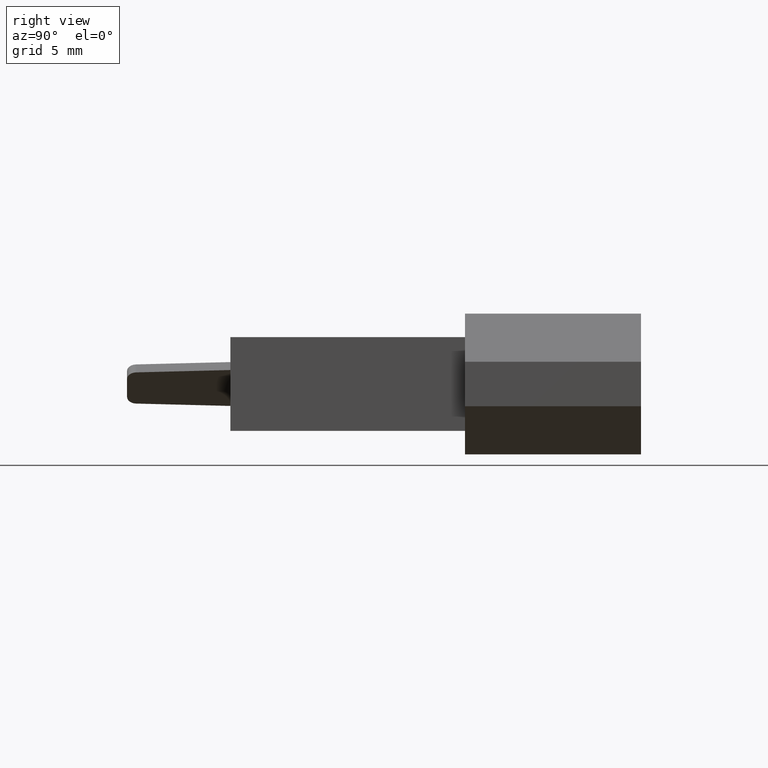
[diagram: clean part render]
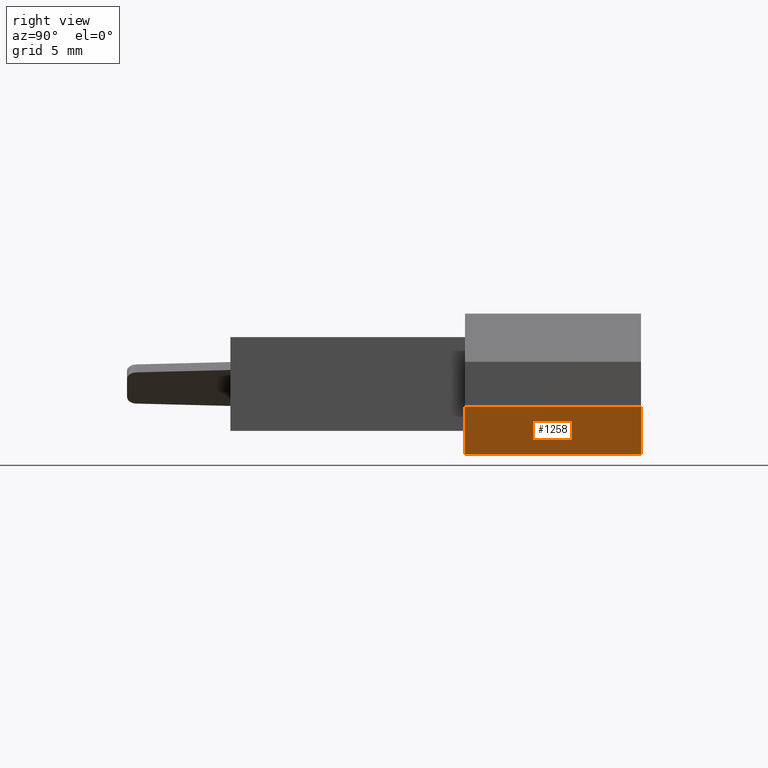
[diagram: same view with one face highlighted and labeled with its STEP entity id]
A machine part, right view. The second image highlights one B-rep face of the part: STEP entity #1258.
In plain terms, the highlighted planar face has unit normal (-0.7071, 0, 0.7071).
Its self-contained STEP definition (entity closure, byte-faithful):
#236 = VECTOR ( 'NONE', #1718, 1000.000000000000000 ) ;
#313 = CARTESIAN_POINT ( 'NONE',  ( 20.86609999999999600, 9.525000000000000400, -3.809999999999999600 ) ) ;
#826 = DIRECTION ( 'NONE',  ( -0.7071067811865490200, -0.0000000000000000000, -0.7071067811865460200 ) ) ;
#933 = CARTESIAN_POINT ( 'NONE',  ( 20.86609999999999600, 9.525000000000000400, -3.809999999999999600 ) ) ;
#988 = VERTEX_POINT ( 'NONE', #8398 ) ;
#1140 = DIRECTION ( 'NONE',  ( -0.7071067811865490200, -0.0000000000000000000, -0.7071067811865460200 ) ) ;
#1258 = ADVANCED_FACE ( 'NONE', ( #7862 ), #6714, .F. ) ;
#1589 = EDGE_CURVE ( 'NONE', #6840, #5432, #3539, .T. ) ;
#1630 = VECTOR ( 'NONE', #826, 1000.000000000000100 ) ;
#1675 = VECTOR ( 'NONE', #7399, 1000.000000000000100 ) ;
#1718 = DIRECTION ( 'NONE',  ( -0.0000000000000000000, -1.000000000000000000, -0.0000000000000000000 ) ) ;
#1891 = CARTESIAN_POINT ( 'NONE',  ( 20.86609999999999600, 0.0000000000000000000, -3.809999999999999600 ) ) ;
#2244 = EDGE_CURVE ( 'NONE', #5432, #988, #8404, .T. ) ;
#2656 = VECTOR ( 'NONE', #8215, 1000.000000000000000 ) ;
#3235 = CARTESIAN_POINT ( 'NONE',  ( 23.46960000000000000, 9.525000000000000400, -1.206500000000005700 ) ) ;
#3366 = ORIENTED_EDGE ( 'NONE', *, *, #2244, .T. ) ;
#3492 = EDGE_CURVE ( 'NONE', #6855, #988, #5938, .T. ) ;
#3539 = LINE ( 'NONE', #5933, #1630 ) ;
#3816 = DIRECTION ( 'NONE',  ( -0.7071067811865460200, 0.0000000000000000000, 0.7071067811865490200 ) ) ;
#4352 = EDGE_CURVE ( 'NONE', #7359, #6855, #5487, .T. ) ;
#4959 = ORIENTED_EDGE ( 'NONE', *, *, #1589, .T. ) ;
#5347 = DIRECTION ( 'NONE',  ( 0.7071067811865490200, 0.0000000000000000000, 0.7071067811865460200 ) ) ;
#5360 = CARTESIAN_POINT ( 'NONE',  ( 22.13609999999999900, 0.0000000000000000000, -2.540000000000000000 ) ) ;
#5432 = VERTEX_POINT ( 'NONE', #5360 ) ;
#5487 = LINE ( 'NONE', #8784, #1675 ) ;
#5933 = CARTESIAN_POINT ( 'NONE',  ( 20.86609999999999600, 0.0000000000000000000, -3.809999999999999600 ) ) ;
#5938 = LINE ( 'NONE', #313, #236 ) ;
#6063 = VECTOR ( 'NONE', #1140, 1000.000000000000100 ) ;
#6137 = CARTESIAN_POINT ( 'NONE',  ( 20.86609999999999600, 9.525000000000000400, -3.809999999999999600 ) ) ;
#6714 = PLANE ( 'NONE',  #8057 ) ;
#6840 = VERTEX_POINT ( 'NONE', #8981 ) ;
#6855 = VERTEX_POINT ( 'NONE', #6137 ) ;
#6909 = EDGE_CURVE ( 'NONE', #7359, #6840, #8356, .T. ) ;
#7002 = ORIENTED_EDGE ( 'NONE', *, *, #3492, .F. ) ;
#7359 = VERTEX_POINT ( 'NONE', #8493 ) ;
#7399 = DIRECTION ( 'NONE',  ( -0.7071067811865490200, -0.0000000000000000000, -0.7071067811865460200 ) ) ;
#7433 = ORIENTED_EDGE ( 'NONE', *, *, #4352, .F. ) ;
#7862 = FACE_OUTER_BOUND ( 'NONE', #8288, .T. ) ;
#8057 = AXIS2_PLACEMENT_3D ( 'NONE', #933, #3816, #5347 ) ;
#8148 = ORIENTED_EDGE ( 'NONE', *, *, #6909, .T. ) ;
#8215 = DIRECTION ( 'NONE',  ( -0.0000000000000000000, -1.000000000000000000, -0.0000000000000000000 ) ) ;
#8288 = EDGE_LOOP ( 'NONE', ( #4959, #3366, #7002, #7433, #8148 ) ) ;
#8356 = LINE ( 'NONE', #3235, #2656 ) ;
#8398 = CARTESIAN_POINT ( 'NONE',  ( 20.86609999999999600, 0.0000000000000000000, -3.809999999999999600 ) ) ;
#8404 = LINE ( 'NONE', #1891, #6063 ) ;
#8493 = CARTESIAN_POINT ( 'NONE',  ( 23.46960000000000000, 9.525000000000000400, -1.206500000000005700 ) ) ;
#8784 = CARTESIAN_POINT ( 'NONE',  ( 20.86609999999999600, 9.525000000000000400, -3.809999999999999600 ) ) ;
#8981 = CARTESIAN_POINT ( 'NONE',  ( 23.46960000000000000, 0.0000000000000000000, -1.206500000000005700 ) ) ;